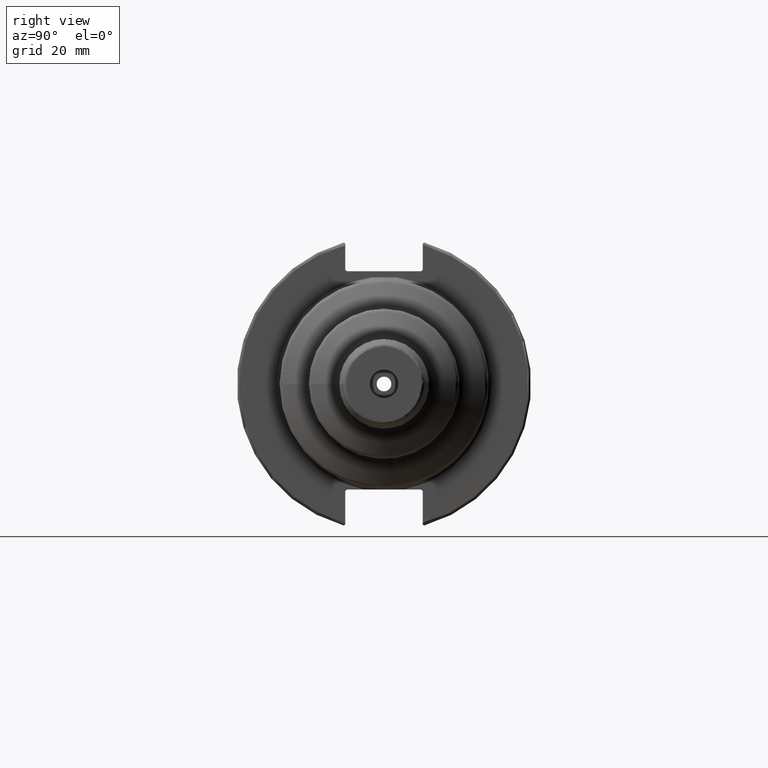
[diagram: clean part render]
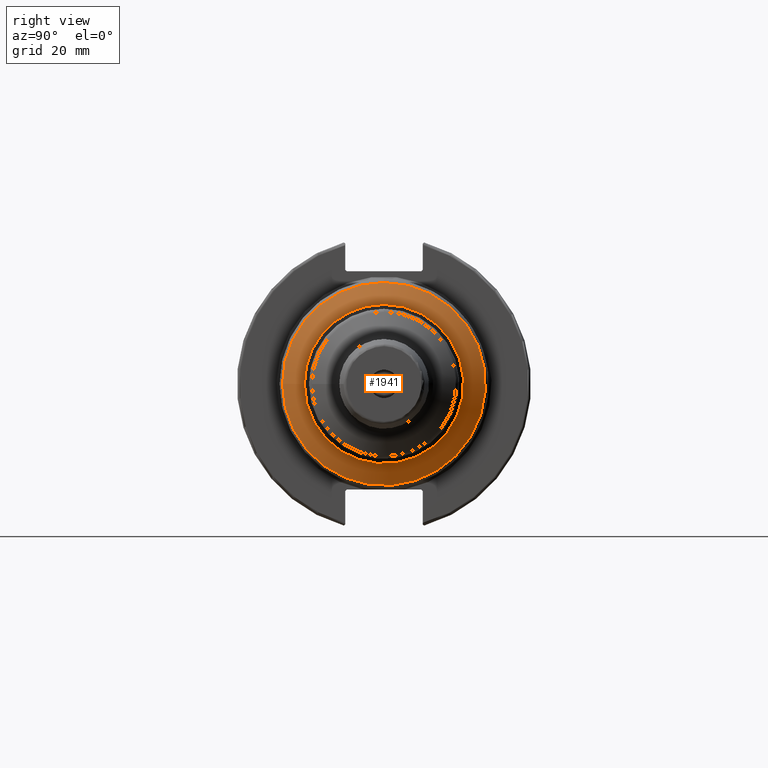
[diagram: same view with one face highlighted and labeled with its STEP entity id]
A machine part, right view. The second image highlights one B-rep face of the part: STEP entity #1941.
In plain terms, the highlighted conical surface has half-angle 60 deg.
Its self-contained STEP definition (entity closure, byte-faithful):
#157=CONICAL_SURFACE('',#2139,30.0375,1.0471975511966);
#196=FACE_OUTER_BOUND('',#310,.T.);
#310=EDGE_LOOP('',(#1425,#1426,#1427,#1428,#1429,#1430));
#429=LINE('',#3155,#536);
#536=VECTOR('',#2501,30.0375);
#683=CIRCLE('',#2131,26.625);
#687=CIRCLE('',#2135,26.625);
#690=CIRCLE('',#2140,33.95);
#691=CIRCLE('',#2141,33.95);
#817=VERTEX_POINT('',#3138);
#818=VERTEX_POINT('',#3139);
#823=VERTEX_POINT('',#3154);
#824=VERTEX_POINT('',#3156);
#1044=EDGE_CURVE('',#817,#818,#683,.T.);
#1048=EDGE_CURVE('',#818,#817,#687,.T.);
#1052=EDGE_CURVE('',#817,#823,#429,.T.);
#1053=EDGE_CURVE('',#824,#823,#690,.T.);
#1054=EDGE_CURVE('',#823,#824,#691,.T.);
#1425=ORIENTED_EDGE('',*,*,#1044,.F.);
#1426=ORIENTED_EDGE('',*,*,#1052,.T.);
#1427=ORIENTED_EDGE('',*,*,#1053,.F.);
#1428=ORIENTED_EDGE('',*,*,#1054,.F.);
#1429=ORIENTED_EDGE('',*,*,#1052,.F.);
#1430=ORIENTED_EDGE('',*,*,#1048,.F.);
#1941=ADVANCED_FACE('',(#196),#157,.T.);
#2131=AXIS2_PLACEMENT_3D('',#3140,#2482,#2483);
#2135=AXIS2_PLACEMENT_3D('',#3146,#2490,#2491);
#2139=AXIS2_PLACEMENT_3D('',#3153,#2499,#2500);
#2140=AXIS2_PLACEMENT_3D('',#3157,#2502,#2503);
#2141=AXIS2_PLACEMENT_3D('',#3158,#2504,#2505);
#2482=DIRECTION('center_axis',(1.,0.,0.));
#2483=DIRECTION('ref_axis',(0.,-1.,3.06161699786838E-17));
#2490=DIRECTION('center_axis',(1.,0.,0.));
#2491=DIRECTION('ref_axis',(0.,-1.,3.06161699786838E-17));
#2499=DIRECTION('center_axis',(-1.,0.,0.));
#2500=DIRECTION('ref_axis',(0.,1.,0.));
#2501=DIRECTION('',(-0.5,-0.866025403784438,-1.06057523872491E-16));
#2502=DIRECTION('center_axis',(-1.,0.,0.));
#2503=DIRECTION('ref_axis',(0.,-1.,3.06161699786838E-17));
#2504=DIRECTION('center_axis',(-1.,0.,0.));
#2505=DIRECTION('ref_axis',(0.,-1.,3.06161699786838E-17));
#3138=CARTESIAN_POINT('',(40.2339745962156,-26.625,-3.26062210272982E-15));
#3139=CARTESIAN_POINT('',(40.2339745962156,-3.26062210272983E-15,26.625));
#3140=CARTESIAN_POINT('Origin',(40.2339745962156,0.,-4.07577762841228E-15));
#3146=CARTESIAN_POINT('Origin',(40.2339745962156,0.,-4.07577762841228E-15));
#3153=CARTESIAN_POINT('Origin',(38.263766802606,0.,0.));
#3154=CARTESIAN_POINT('',(36.0048838744015,-33.95,-4.15767588310526E-15));
#3155=CARTESIAN_POINT('',(38.263766802606,-30.0375,-3.67853282293886E-15));
#3156=CARTESIAN_POINT('',(36.0048838744015,-4.15767588310526E-15,33.95));
#3157=CARTESIAN_POINT('Origin',(36.0048838744015,0.,-5.19709485388158E-15));
#3158=CARTESIAN_POINT('Origin',(36.0048838744015,0.,-5.19709485388158E-15));